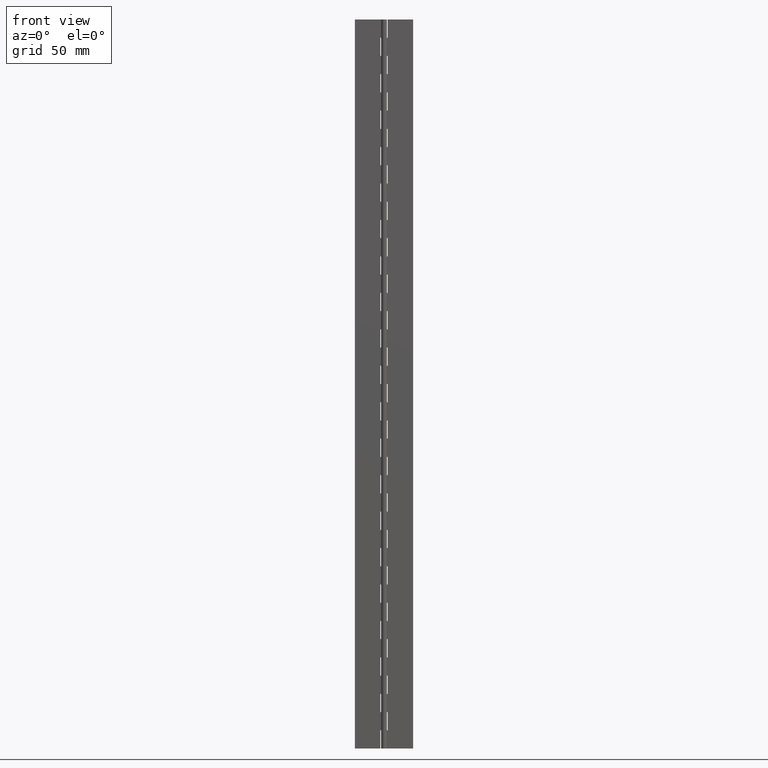
[diagram: clean part render]
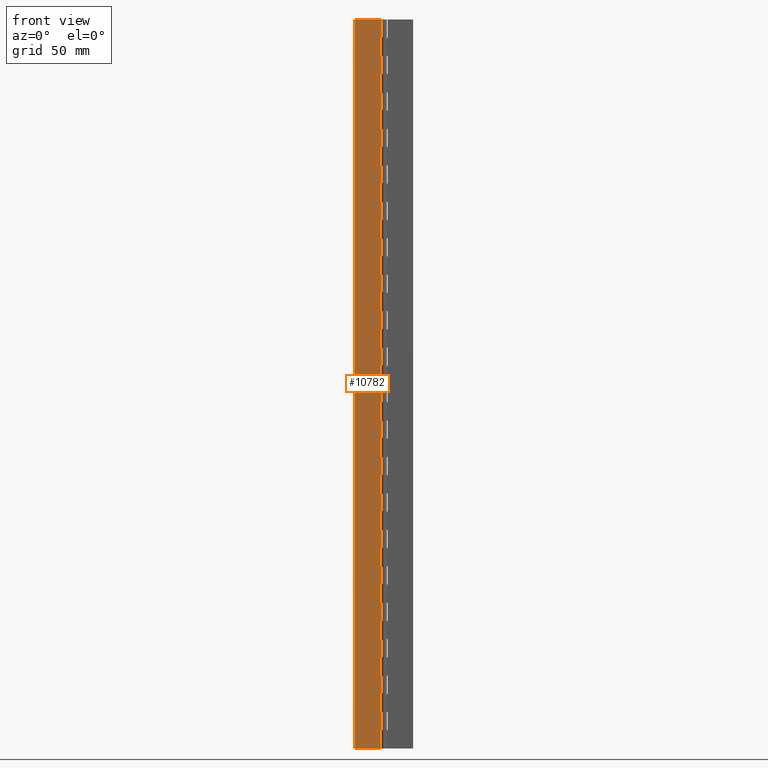
[diagram: same view with one face highlighted and labeled with its STEP entity id]
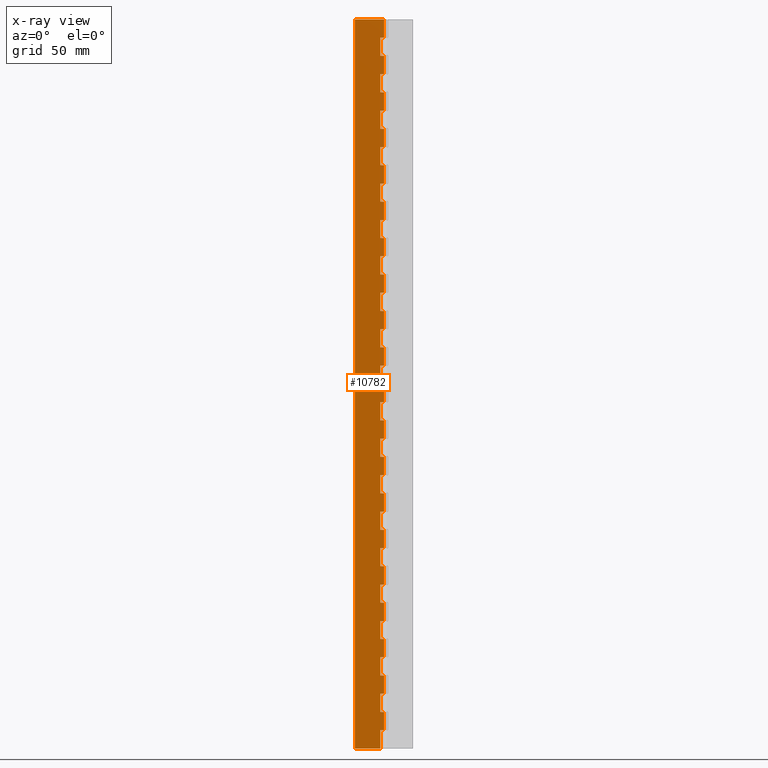
[diagram: x-ray of the same camera — body ghosted, the highlighted face saturated]
A machine part, front view. The second image highlights one B-rep face of the part: STEP entity #10782.
The next image is the same camera in x-ray: the body ghosted, the highlighted face saturated — about 0% of this face is hidden behind the body in this view.
In plain terms, the highlighted face is a freeform B-spline surface patch.
Its self-contained STEP definition (entity closure, byte-faithful):
#5566=CARTESIAN_POINT('',(-2.500000000000000,1.0,475.0));
#5567=VERTEX_POINT('',#5566);
#5582=CARTESIAN_POINT('',(-2.500000000000000,1.0,487.500000000000000));
#5583=VERTEX_POINT('',#5582);
#5589=CARTESIAN_POINT('',(-2.500000000000000,1.0,475.0));
#5590=CARTESIAN_POINT('',(-2.500000000000000,1.0,487.500000000000000));
#5591=QUASI_UNIFORM_CURVE('',1,(#5589,#5590),.UNSPECIFIED.,.F.,.U.);
#5592=EDGE_CURVE('',#5567,#5583,#5591,.T.);
#5631=CARTESIAN_POINT('',(6.123122E-017,1.0,475.0));
#5632=VERTEX_POINT('',#5631);
#5633=CARTESIAN_POINT('',(6.123122E-017,1.0,475.0));
#5634=CARTESIAN_POINT('',(-2.500000000000000,1.0,475.0));
#5635=QUASI_UNIFORM_CURVE('',1,(#5633,#5634),.UNSPECIFIED.,.F.,.U.);
#5636=EDGE_CURVE('',#5632,#5567,#5635,.T.);
#5702=CARTESIAN_POINT('',(6.123122E-017,1.0,487.500000000000000));
#5703=VERTEX_POINT('',#5702);
#5723=CARTESIAN_POINT('',(-2.500000000000000,1.0,487.500000000000000));
#5724=CARTESIAN_POINT('',(6.123122E-017,1.0,487.500000000000000));
#5725=QUASI_UNIFORM_CURVE('',1,(#5723,#5724),.UNSPECIFIED.,.F.,.U.);
#5726=EDGE_CURVE('',#5583,#5703,#5725,.T.);
#5742=CARTESIAN_POINT('',(-2.500000000000000,1.0,450.0));
#5743=VERTEX_POINT('',#5742);
#5758=CARTESIAN_POINT('',(-2.500000000000000,1.0,462.500000000000000));
#5759=VERTEX_POINT('',#5758);
#5765=CARTESIAN_POINT('',(-2.500000000000000,1.0,450.0));
#5766=CARTESIAN_POINT('',(-2.500000000000000,1.0,462.500000000000000));
#5767=QUASI_UNIFORM_CURVE('',1,(#5765,#5766),.UNSPECIFIED.,.F.,.U.);
#5768=EDGE_CURVE('',#5743,#5759,#5767,.T.);
#5807=CARTESIAN_POINT('',(6.123122E-017,1.0,450.0));
#5808=VERTEX_POINT('',#5807);
#5809=CARTESIAN_POINT('',(6.123122E-017,1.0,450.0));
#5810=CARTESIAN_POINT('',(-2.500000000000000,1.0,450.0));
#5811=QUASI_UNIFORM_CURVE('',1,(#5809,#5810),.UNSPECIFIED.,.F.,.U.);
#5812=EDGE_CURVE('',#5808,#5743,#5811,.T.);
#5878=CARTESIAN_POINT('',(6.123122E-017,1.0,462.500000000000000));
#5879=VERTEX_POINT('',#5878);
#5899=CARTESIAN_POINT('',(-2.500000000000000,1.0,462.500000000000000));
#5900=CARTESIAN_POINT('',(6.123122E-017,1.0,462.500000000000000));
#5901=QUASI_UNIFORM_CURVE('',1,(#5899,#5900),.UNSPECIFIED.,.F.,.U.);
#5902=EDGE_CURVE('',#5759,#5879,#5901,.T.);
#5918=CARTESIAN_POINT('',(-2.500000000000000,1.0,425.0));
#5919=VERTEX_POINT('',#5918);
#5934=CARTESIAN_POINT('',(-2.500000000000000,1.0,437.500000000000000));
#5935=VERTEX_POINT('',#5934);
#5941=CARTESIAN_POINT('',(-2.500000000000000,1.0,425.0));
#5942=CARTESIAN_POINT('',(-2.500000000000000,1.0,437.500000000000000));
#5943=QUASI_UNIFORM_CURVE('',1,(#5941,#5942),.UNSPECIFIED.,.F.,.U.);
#5944=EDGE_CURVE('',#5919,#5935,#5943,.T.);
#5983=CARTESIAN_POINT('',(6.123122E-017,1.0,425.0));
#5984=VERTEX_POINT('',#5983);
#5985=CARTESIAN_POINT('',(6.123122E-017,1.0,425.0));
#5986=CARTESIAN_POINT('',(-2.500000000000000,1.0,425.0));
#5987=QUASI_UNIFORM_CURVE('',1,(#5985,#5986),.UNSPECIFIED.,.F.,.U.);
#5988=EDGE_CURVE('',#5984,#5919,#5987,.T.);
#6054=CARTESIAN_POINT('',(6.123122E-017,1.0,437.500000000000000));
#6055=VERTEX_POINT('',#6054);
#6075=CARTESIAN_POINT('',(-2.500000000000000,1.0,437.500000000000000));
#6076=CARTESIAN_POINT('',(6.123122E-017,1.0,437.500000000000000));
#6077=QUASI_UNIFORM_CURVE('',1,(#6075,#6076),.UNSPECIFIED.,.F.,.U.);
#6078=EDGE_CURVE('',#5935,#6055,#6077,.T.);
#6094=CARTESIAN_POINT('',(-2.500000000000000,1.0,400.0));
#6095=VERTEX_POINT('',#6094);
#6110=CARTESIAN_POINT('',(-2.500000000000000,1.0,412.500000000000000));
#6111=VERTEX_POINT('',#6110);
#6117=CARTESIAN_POINT('',(-2.500000000000000,1.0,400.0));
#6118=CARTESIAN_POINT('',(-2.500000000000000,1.0,412.500000000000000));
#6119=QUASI_UNIFORM_CURVE('',1,(#6117,#6118),.UNSPECIFIED.,.F.,.U.);
#6120=EDGE_CURVE('',#6095,#6111,#6119,.T.);
#6159=CARTESIAN_POINT('',(6.123122E-017,1.0,400.0));
#6160=VERTEX_POINT('',#6159);
#6161=CARTESIAN_POINT('',(6.123122E-017,1.0,400.0));
#6162=CARTESIAN_POINT('',(-2.500000000000000,1.0,400.0));
#6163=QUASI_UNIFORM_CURVE('',1,(#6161,#6162),.UNSPECIFIED.,.F.,.U.);
#6164=EDGE_CURVE('',#6160,#6095,#6163,.T.);
#6230=CARTESIAN_POINT('',(6.123122E-017,1.0,412.500000000000000));
#6231=VERTEX_POINT('',#6230);
#6251=CARTESIAN_POINT('',(-2.500000000000000,1.0,412.500000000000000));
#6252=CARTESIAN_POINT('',(6.123122E-017,1.0,412.500000000000000));
#6253=QUASI_UNIFORM_CURVE('',1,(#6251,#6252),.UNSPECIFIED.,.F.,.U.);
#6254=EDGE_CURVE('',#6111,#6231,#6253,.T.);
#6270=CARTESIAN_POINT('',(-2.500000000000000,1.0,375.0));
#6271=VERTEX_POINT('',#6270);
#6286=CARTESIAN_POINT('',(-2.500000000000000,1.0,387.500000000000000));
#6287=VERTEX_POINT('',#6286);
#6293=CARTESIAN_POINT('',(-2.500000000000000,1.0,375.0));
#6294=CARTESIAN_POINT('',(-2.500000000000000,1.0,387.500000000000000));
#6295=QUASI_UNIFORM_CURVE('',1,(#6293,#6294),.UNSPECIFIED.,.F.,.U.);
#6296=EDGE_CURVE('',#6271,#6287,#6295,.T.);
#6335=CARTESIAN_POINT('',(6.123122E-017,1.0,375.0));
#6336=VERTEX_POINT('',#6335);
#6337=CARTESIAN_POINT('',(6.123122E-017,1.0,375.0));
#6338=CARTESIAN_POINT('',(-2.500000000000000,1.0,375.0));
#6339=QUASI_UNIFORM_CURVE('',1,(#6337,#6338),.UNSPECIFIED.,.F.,.U.);
#6340=EDGE_CURVE('',#6336,#6271,#6339,.T.);
#6406=CARTESIAN_POINT('',(6.123122E-017,1.0,387.500000000000000));
#6407=VERTEX_POINT('',#6406);
#6427=CARTESIAN_POINT('',(-2.500000000000000,1.0,387.500000000000000));
#6428=CARTESIAN_POINT('',(6.123122E-017,1.0,387.500000000000000));
#6429=QUASI_UNIFORM_CURVE('',1,(#6427,#6428),.UNSPECIFIED.,.F.,.U.);
#6430=EDGE_CURVE('',#6287,#6407,#6429,.T.);
#6446=CARTESIAN_POINT('',(-2.500000000000000,1.0,350.0));
#6447=VERTEX_POINT('',#6446);
#6462=CARTESIAN_POINT('',(-2.500000000000000,1.0,362.500000000000000));
#6463=VERTEX_POINT('',#6462);
#6469=CARTESIAN_POINT('',(-2.500000000000000,1.0,350.0));
#6470=CARTESIAN_POINT('',(-2.500000000000000,1.0,362.500000000000000));
#6471=QUASI_UNIFORM_CURVE('',1,(#6469,#6470),.UNSPECIFIED.,.F.,.U.);
#6472=EDGE_CURVE('',#6447,#6463,#6471,.T.);
#6511=CARTESIAN_POINT('',(6.123122E-017,1.0,350.0));
#6512=VERTEX_POINT('',#6511);
#6513=CARTESIAN_POINT('',(6.123122E-017,1.0,350.0));
#6514=CARTESIAN_POINT('',(-2.500000000000000,1.0,350.0));
#6515=QUASI_UNIFORM_CURVE('',1,(#6513,#6514),.UNSPECIFIED.,.F.,.U.);
#6516=EDGE_CURVE('',#6512,#6447,#6515,.T.);
#6582=CARTESIAN_POINT('',(6.123122E-017,1.0,362.500000000000000));
#6583=VERTEX_POINT('',#6582);
#6603=CARTESIAN_POINT('',(-2.500000000000000,1.0,362.500000000000000));
#6604=CARTESIAN_POINT('',(6.123122E-017,1.0,362.500000000000000));
#6605=QUASI_UNIFORM_CURVE('',1,(#6603,#6604),.UNSPECIFIED.,.F.,.U.);
#6606=EDGE_CURVE('',#6463,#6583,#6605,.T.);
#6622=CARTESIAN_POINT('',(-2.500000000000000,1.0,325.0));
#6623=VERTEX_POINT('',#6622);
#6638=CARTESIAN_POINT('',(-2.500000000000000,1.0,337.500000000000000));
#6639=VERTEX_POINT('',#6638);
#6645=CARTESIAN_POINT('',(-2.500000000000000,1.0,325.0));
#6646=CARTESIAN_POINT('',(-2.500000000000000,1.0,337.500000000000000));
#6647=QUASI_UNIFORM_CURVE('',1,(#6645,#6646),.UNSPECIFIED.,.F.,.U.);
#6648=EDGE_CURVE('',#6623,#6639,#6647,.T.);
#6687=CARTESIAN_POINT('',(6.123122E-017,1.0,325.0));
#6688=VERTEX_POINT('',#6687);
#6689=CARTESIAN_POINT('',(6.123122E-017,1.0,325.0));
#6690=CARTESIAN_POINT('',(-2.500000000000000,1.0,325.0));
#6691=QUASI_UNIFORM_CURVE('',1,(#6689,#6690),.UNSPECIFIED.,.F.,.U.);
#6692=EDGE_CURVE('',#6688,#6623,#6691,.T.);
#6758=CARTESIAN_POINT('',(6.123122E-017,1.0,337.500000000000000));
#6759=VERTEX_POINT('',#6758);
#6779=CARTESIAN_POINT('',(-2.500000000000000,1.0,337.500000000000000));
#6780=CARTESIAN_POINT('',(6.123122E-017,1.0,337.500000000000000));
#6781=QUASI_UNIFORM_CURVE('',1,(#6779,#6780),.UNSPECIFIED.,.F.,.U.);
#6782=EDGE_CURVE('',#6639,#6759,#6781,.T.);
#6798=CARTESIAN_POINT('',(-2.500000000000000,1.0,300.0));
#6799=VERTEX_POINT('',#6798);
#6814=CARTESIAN_POINT('',(-2.500000000000000,1.0,312.500000000000000));
#6815=VERTEX_POINT('',#6814);
#6821=CARTESIAN_POINT('',(-2.500000000000000,1.0,300.0));
#6822=CARTESIAN_POINT('',(-2.500000000000000,1.0,312.500000000000000));
#6823=QUASI_UNIFORM_CURVE('',1,(#6821,#6822),.UNSPECIFIED.,.F.,.U.);
#6824=EDGE_CURVE('',#6799,#6815,#6823,.T.);
#6863=CARTESIAN_POINT('',(6.123122E-017,1.0,300.0));
#6864=VERTEX_POINT('',#6863);
#6865=CARTESIAN_POINT('',(6.123122E-017,1.0,300.0));
#6866=CARTESIAN_POINT('',(-2.500000000000000,1.0,300.0));
#6867=QUASI_UNIFORM_CURVE('',1,(#6865,#6866),.UNSPECIFIED.,.F.,.U.);
#6868=EDGE_CURVE('',#6864,#6799,#6867,.T.);
#6934=CARTESIAN_POINT('',(6.123122E-017,1.0,312.500000000000000));
#6935=VERTEX_POINT('',#6934);
#6955=CARTESIAN_POINT('',(-2.500000000000000,1.0,312.500000000000000));
#6956=CARTESIAN_POINT('',(6.123122E-017,1.0,312.500000000000000));
#6957=QUASI_UNIFORM_CURVE('',1,(#6955,#6956),.UNSPECIFIED.,.F.,.U.);
#6958=EDGE_CURVE('',#6815,#6935,#6957,.T.);
#6974=CARTESIAN_POINT('',(-2.500000000000000,1.0,275.0));
#6975=VERTEX_POINT('',#6974);
#6990=CARTESIAN_POINT('',(-2.500000000000000,1.0,287.500000000000000));
#6991=VERTEX_POINT('',#6990);
#6997=CARTESIAN_POINT('',(-2.500000000000000,1.0,275.0));
#6998=CARTESIAN_POINT('',(-2.500000000000000,1.0,287.500000000000000));
#6999=QUASI_UNIFORM_CURVE('',1,(#6997,#6998),.UNSPECIFIED.,.F.,.U.);
#7000=EDGE_CURVE('',#6975,#6991,#6999,.T.);
#7039=CARTESIAN_POINT('',(6.123122E-017,1.0,275.0));
#7040=VERTEX_POINT('',#7039);
#7041=CARTESIAN_POINT('',(6.123122E-017,1.0,275.0));
#7042=CARTESIAN_POINT('',(-2.500000000000000,1.0,275.0));
#7043=QUASI_UNIFORM_CURVE('',1,(#7041,#7042),.UNSPECIFIED.,.F.,.U.);
#7044=EDGE_CURVE('',#7040,#6975,#7043,.T.);
#7110=CARTESIAN_POINT('',(6.123122E-017,1.0,287.500000000000000));
#7111=VERTEX_POINT('',#7110);
#7131=CARTESIAN_POINT('',(-2.500000000000000,1.0,287.500000000000000));
#7132=CARTESIAN_POINT('',(6.123122E-017,1.0,287.500000000000000));
#7133=QUASI_UNIFORM_CURVE('',1,(#7131,#7132),.UNSPECIFIED.,.F.,.U.);
#7134=EDGE_CURVE('',#6991,#7111,#7133,.T.);
#7150=CARTESIAN_POINT('',(-2.500000000000000,1.0,250.0));
#7151=VERTEX_POINT('',#7150);
#7166=CARTESIAN_POINT('',(-2.500000000000000,1.0,262.500000000000000));
#7167=VERTEX_POINT('',#7166);
#7173=CARTESIAN_POINT('',(-2.500000000000000,1.0,250.0));
#7174=CARTESIAN_POINT('',(-2.500000000000000,1.0,262.500000000000000));
#7175=QUASI_UNIFORM_CURVE('',1,(#7173,#7174),.UNSPECIFIED.,.F.,.U.);
#7176=EDGE_CURVE('',#7151,#7167,#7175,.T.);
#7215=CARTESIAN_POINT('',(6.123122E-017,1.0,250.0));
#7216=VERTEX_POINT('',#7215);
#7217=CARTESIAN_POINT('',(6.123122E-017,1.0,250.0));
#7218=CARTESIAN_POINT('',(-2.500000000000000,1.0,250.0));
#7219=QUASI_UNIFORM_CURVE('',1,(#7217,#7218),.UNSPECIFIED.,.F.,.U.);
#7220=EDGE_CURVE('',#7216,#7151,#7219,.T.);
#7286=CARTESIAN_POINT('',(6.123122E-017,1.0,262.500000000000000));
#7287=VERTEX_POINT('',#7286);
#7307=CARTESIAN_POINT('',(-2.500000000000000,1.0,262.500000000000000));
#7308=CARTESIAN_POINT('',(6.123122E-017,1.0,262.500000000000000));
#7309=QUASI_UNIFORM_CURVE('',1,(#7307,#7308),.UNSPECIFIED.,.F.,.U.);
#7310=EDGE_CURVE('',#7167,#7287,#7309,.T.);
#7326=CARTESIAN_POINT('',(-2.500000000000000,1.0,225.0));
#7327=VERTEX_POINT('',#7326);
#7342=CARTESIAN_POINT('',(-2.500000000000000,1.0,237.500000000000000));
#7343=VERTEX_POINT('',#7342);
#7349=CARTESIAN_POINT('',(-2.500000000000000,1.0,225.0));
#7350=CARTESIAN_POINT('',(-2.500000000000000,1.0,237.500000000000000));
#7351=QUASI_UNIFORM_CURVE('',1,(#7349,#7350),.UNSPECIFIED.,.F.,.U.);
#7352=EDGE_CURVE('',#7327,#7343,#7351,.T.);
#7391=CARTESIAN_POINT('',(6.123122E-017,1.0,225.0));
#7392=VERTEX_POINT('',#7391);
#7393=CARTESIAN_POINT('',(6.123122E-017,1.0,225.0));
#7394=CARTESIAN_POINT('',(-2.500000000000000,1.0,225.0));
#7395=QUASI_UNIFORM_CURVE('',1,(#7393,#7394),.UNSPECIFIED.,.F.,.U.);
#7396=EDGE_CURVE('',#7392,#7327,#7395,.T.);
#7462=CARTESIAN_POINT('',(6.123122E-017,1.0,237.500000000000000));
#7463=VERTEX_POINT('',#7462);
#7483=CARTESIAN_POINT('',(-2.500000000000000,1.0,237.500000000000000));
#7484=CARTESIAN_POINT('',(6.123122E-017,1.0,237.500000000000000));
#7485=QUASI_UNIFORM_CURVE('',1,(#7483,#7484),.UNSPECIFIED.,.F.,.U.);
#7486=EDGE_CURVE('',#7343,#7463,#7485,.T.);
#7502=CARTESIAN_POINT('',(-2.500000000000000,1.0,200.0));
#7503=VERTEX_POINT('',#7502);
#7518=CARTESIAN_POINT('',(-2.500000000000000,1.0,212.500000000000000));
#7519=VERTEX_POINT('',#7518);
#7525=CARTESIAN_POINT('',(-2.500000000000000,1.0,200.0));
#7526=CARTESIAN_POINT('',(-2.500000000000000,1.0,212.500000000000000));
#7527=QUASI_UNIFORM_CURVE('',1,(#7525,#7526),.UNSPECIFIED.,.F.,.U.);
#7528=EDGE_CURVE('',#7503,#7519,#7527,.T.);
#7567=CARTESIAN_POINT('',(6.123122E-017,1.0,200.0));
#7568=VERTEX_POINT('',#7567);
#7569=CARTESIAN_POINT('',(6.123122E-017,1.0,200.0));
#7570=CARTESIAN_POINT('',(-2.500000000000000,1.0,200.0));
#7571=QUASI_UNIFORM_CURVE('',1,(#7569,#7570),.UNSPECIFIED.,.F.,.U.);
#7572=EDGE_CURVE('',#7568,#7503,#7571,.T.);
#7638=CARTESIAN_POINT('',(6.123122E-017,1.0,212.500000000000000));
#7639=VERTEX_POINT('',#7638);
#7659=CARTESIAN_POINT('',(-2.500000000000000,1.0,212.500000000000000));
#7660=CARTESIAN_POINT('',(6.123122E-017,1.0,212.500000000000000));
#7661=QUASI_UNIFORM_CURVE('',1,(#7659,#7660),.UNSPECIFIED.,.F.,.U.);
#7662=EDGE_CURVE('',#7519,#7639,#7661,.T.);
#7678=CARTESIAN_POINT('',(-2.500000000000000,1.0,175.0));
#7679=VERTEX_POINT('',#7678);
#7694=CARTESIAN_POINT('',(-2.500000000000000,1.0,187.500000000000000));
#7695=VERTEX_POINT('',#7694);
#7701=CARTESIAN_POINT('',(-2.500000000000000,1.0,175.0));
#7702=CARTESIAN_POINT('',(-2.500000000000000,1.0,187.500000000000000));
#7703=QUASI_UNIFORM_CURVE('',1,(#7701,#7702),.UNSPECIFIED.,.F.,.U.);
#7704=EDGE_CURVE('',#7679,#7695,#7703,.T.);
#7743=CARTESIAN_POINT('',(6.123122E-017,1.0,175.0));
#7744=VERTEX_POINT('',#7743);
#7745=CARTESIAN_POINT('',(6.123122E-017,1.0,175.0));
#7746=CARTESIAN_POINT('',(-2.500000000000000,1.0,175.0));
#7747=QUASI_UNIFORM_CURVE('',1,(#7745,#7746),.UNSPECIFIED.,.F.,.U.);
#7748=EDGE_CURVE('',#7744,#7679,#7747,.T.);
#7814=CARTESIAN_POINT('',(6.123122E-017,1.0,187.500000000000000));
#7815=VERTEX_POINT('',#7814);
#7835=CARTESIAN_POINT('',(-2.500000000000000,1.0,187.500000000000000));
#7836=CARTESIAN_POINT('',(6.123122E-017,1.0,187.500000000000000));
#7837=QUASI_UNIFORM_CURVE('',1,(#7835,#7836),.UNSPECIFIED.,.F.,.U.);
#7838=EDGE_CURVE('',#7695,#7815,#7837,.T.);
#7854=CARTESIAN_POINT('',(-2.500000000000000,1.0,150.0));
#7855=VERTEX_POINT('',#7854);
#7870=CARTESIAN_POINT('',(-2.500000000000000,1.0,162.500000000000000));
#7871=VERTEX_POINT('',#7870);
#7877=CARTESIAN_POINT('',(-2.500000000000000,1.0,150.0));
#7878=CARTESIAN_POINT('',(-2.500000000000000,1.0,162.500000000000000));
#7879=QUASI_UNIFORM_CURVE('',1,(#7877,#7878),.UNSPECIFIED.,.F.,.U.);
#7880=EDGE_CURVE('',#7855,#7871,#7879,.T.);
#7919=CARTESIAN_POINT('',(6.123122E-017,1.0,150.0));
#7920=VERTEX_POINT('',#7919);
#7921=CARTESIAN_POINT('',(6.123122E-017,1.0,150.0));
#7922=CARTESIAN_POINT('',(-2.500000000000000,1.0,150.0));
#7923=QUASI_UNIFORM_CURVE('',1,(#7921,#7922),.UNSPECIFIED.,.F.,.U.);
#7924=EDGE_CURVE('',#7920,#7855,#7923,.T.);
#7990=CARTESIAN_POINT('',(6.123122E-017,1.0,162.500000000000000));
#7991=VERTEX_POINT('',#7990);
#8011=CARTESIAN_POINT('',(-2.500000000000000,1.0,162.500000000000000));
#8012=CARTESIAN_POINT('',(6.123122E-017,1.0,162.500000000000000));
#8013=QUASI_UNIFORM_CURVE('',1,(#8011,#8012),.UNSPECIFIED.,.F.,.U.);
#8014=EDGE_CURVE('',#7871,#7991,#8013,.T.);
#8030=CARTESIAN_POINT('',(-2.500000000000000,1.0,125.0));
#8031=VERTEX_POINT('',#8030);
#8046=CARTESIAN_POINT('',(-2.500000000000000,1.0,137.500000000000000));
#8047=VERTEX_POINT('',#8046);
#8053=CARTESIAN_POINT('',(-2.500000000000000,1.0,125.0));
#8054=CARTESIAN_POINT('',(-2.500000000000000,1.0,137.500000000000000));
#8055=QUASI_UNIFORM_CURVE('',1,(#8053,#8054),.UNSPECIFIED.,.F.,.U.);
#8056=EDGE_CURVE('',#8031,#8047,#8055,.T.);
#8095=CARTESIAN_POINT('',(6.123122E-017,1.0,125.0));
#8096=VERTEX_POINT('',#8095);
#8097=CARTESIAN_POINT('',(6.123122E-017,1.0,125.0));
#8098=CARTESIAN_POINT('',(-2.500000000000000,1.0,125.0));
#8099=QUASI_UNIFORM_CURVE('',1,(#8097,#8098),.UNSPECIFIED.,.F.,.U.);
#8100=EDGE_CURVE('',#8096,#8031,#8099,.T.);
#8166=CARTESIAN_POINT('',(6.123122E-017,1.0,137.500000000000000));
#8167=VERTEX_POINT('',#8166);
#8187=CARTESIAN_POINT('',(-2.500000000000000,1.0,137.500000000000000));
#8188=CARTESIAN_POINT('',(6.123122E-017,1.0,137.500000000000000));
#8189=QUASI_UNIFORM_CURVE('',1,(#8187,#8188),.UNSPECIFIED.,.F.,.U.);
#8190=EDGE_CURVE('',#8047,#8167,#8189,.T.);
#8206=CARTESIAN_POINT('',(-2.500000000000000,1.0,100.0));
#8207=VERTEX_POINT('',#8206);
#8222=CARTESIAN_POINT('',(-2.500000000000000,1.0,112.500000000000000));
#8223=VERTEX_POINT('',#8222);
#8229=CARTESIAN_POINT('',(-2.500000000000000,1.0,100.0));
#8230=CARTESIAN_POINT('',(-2.500000000000000,1.0,112.500000000000000));
#8231=QUASI_UNIFORM_CURVE('',1,(#8229,#8230),.UNSPECIFIED.,.F.,.U.);
#8232=EDGE_CURVE('',#8207,#8223,#8231,.T.);
#8271=CARTESIAN_POINT('',(6.123122E-017,1.0,100.0));
#8272=VERTEX_POINT('',#8271);
#8273=CARTESIAN_POINT('',(6.123122E-017,1.0,100.0));
#8274=CARTESIAN_POINT('',(-2.500000000000000,1.0,100.0));
#8275=QUASI_UNIFORM_CURVE('',1,(#8273,#8274),.UNSPECIFIED.,.F.,.U.);
#8276=EDGE_CURVE('',#8272,#8207,#8275,.T.);
#8342=CARTESIAN_POINT('',(6.123122E-017,1.0,112.500000000000000));
#8343=VERTEX_POINT('',#8342);
#8363=CARTESIAN_POINT('',(-2.500000000000000,1.0,112.500000000000000));
#8364=CARTESIAN_POINT('',(6.123122E-017,1.0,112.500000000000000));
#8365=QUASI_UNIFORM_CURVE('',1,(#8363,#8364),.UNSPECIFIED.,.F.,.U.);
#8366=EDGE_CURVE('',#8223,#8343,#8365,.T.);
#8382=CARTESIAN_POINT('',(-2.500000000000000,1.0,75.0));
#8383=VERTEX_POINT('',#8382);
#8398=CARTESIAN_POINT('',(-2.500000000000000,1.0,87.500000000000000));
#8399=VERTEX_POINT('',#8398);
#8405=CARTESIAN_POINT('',(-2.500000000000000,1.0,75.0));
#8406=CARTESIAN_POINT('',(-2.500000000000000,1.0,87.500000000000000));
#8407=QUASI_UNIFORM_CURVE('',1,(#8405,#8406),.UNSPECIFIED.,.F.,.U.);
#8408=EDGE_CURVE('',#8383,#8399,#8407,.T.);
#8447=CARTESIAN_POINT('',(6.123122E-017,1.0,75.0));
#8448=VERTEX_POINT('',#8447);
#8449=CARTESIAN_POINT('',(6.123122E-017,1.0,75.0));
#8450=CARTESIAN_POINT('',(-2.500000000000000,1.0,75.0));
#8451=QUASI_UNIFORM_CURVE('',1,(#8449,#8450),.UNSPECIFIED.,.F.,.U.);
#8452=EDGE_CURVE('',#8448,#8383,#8451,.T.);
#8518=CARTESIAN_POINT('',(6.123122E-017,1.0,87.500000000000000));
#8519=VERTEX_POINT('',#8518);
#8539=CARTESIAN_POINT('',(-2.500000000000000,1.0,87.500000000000000));
#8540=CARTESIAN_POINT('',(6.123122E-017,1.0,87.500000000000000));
#8541=QUASI_UNIFORM_CURVE('',1,(#8539,#8540),.UNSPECIFIED.,.F.,.U.);
#8542=EDGE_CURVE('',#8399,#8519,#8541,.T.);
#8558=CARTESIAN_POINT('',(-2.500000000000000,1.0,50.0));
#8559=VERTEX_POINT('',#8558);
#8574=CARTESIAN_POINT('',(-2.500000000000000,1.0,62.500000000000000));
#8575=VERTEX_POINT('',#8574);
#8581=CARTESIAN_POINT('',(-2.500000000000000,1.0,50.0));
#8582=CARTESIAN_POINT('',(-2.500000000000000,1.0,62.500000000000000));
#8583=QUASI_UNIFORM_CURVE('',1,(#8581,#8582),.UNSPECIFIED.,.F.,.U.);
#8584=EDGE_CURVE('',#8559,#8575,#8583,.T.);
#8623=CARTESIAN_POINT('',(6.123122E-017,1.0,50.0));
#8624=VERTEX_POINT('',#8623);
#8625=CARTESIAN_POINT('',(6.123122E-017,1.0,50.0));
#8626=CARTESIAN_POINT('',(-2.500000000000000,1.0,50.0));
#8627=QUASI_UNIFORM_CURVE('',1,(#8625,#8626),.UNSPECIFIED.,.F.,.U.);
#8628=EDGE_CURVE('',#8624,#8559,#8627,.T.);
#8694=CARTESIAN_POINT('',(6.123122E-017,1.0,62.500000000000000));
#8695=VERTEX_POINT('',#8694);
#8715=CARTESIAN_POINT('',(-2.500000000000000,1.0,62.500000000000000));
#8716=CARTESIAN_POINT('',(6.123122E-017,1.0,62.500000000000000));
#8717=QUASI_UNIFORM_CURVE('',1,(#8715,#8716),.UNSPECIFIED.,.F.,.U.);
#8718=EDGE_CURVE('',#8575,#8695,#8717,.T.);
#8734=CARTESIAN_POINT('',(-2.500000000000000,1.0,25.0));
#8735=VERTEX_POINT('',#8734);
#8750=CARTESIAN_POINT('',(-2.500000000000000,1.0,37.500000000000000));
#8751=VERTEX_POINT('',#8750);
#8757=CARTESIAN_POINT('',(-2.500000000000000,1.0,25.0));
#8758=CARTESIAN_POINT('',(-2.500000000000000,1.0,37.500000000000000));
#8759=QUASI_UNIFORM_CURVE('',1,(#8757,#8758),.UNSPECIFIED.,.F.,.U.);
#8760=EDGE_CURVE('',#8735,#8751,#8759,.T.);
#8799=CARTESIAN_POINT('',(6.123122E-017,1.0,25.0));
#8800=VERTEX_POINT('',#8799);
#8801=CARTESIAN_POINT('',(6.123122E-017,1.0,25.0));
#8802=CARTESIAN_POINT('',(-2.500000000000000,1.0,25.0));
#8803=QUASI_UNIFORM_CURVE('',1,(#8801,#8802),.UNSPECIFIED.,.F.,.U.);
#8804=EDGE_CURVE('',#8800,#8735,#8803,.T.);
#8870=CARTESIAN_POINT('',(6.123122E-017,1.0,37.500000000000000));
#8871=VERTEX_POINT('',#8870);
#8891=CARTESIAN_POINT('',(-2.500000000000000,1.0,37.500000000000000));
#8892=CARTESIAN_POINT('',(6.123122E-017,1.0,37.500000000000000));
#8893=QUASI_UNIFORM_CURVE('',1,(#8891,#8892),.UNSPECIFIED.,.F.,.U.);
#8894=EDGE_CURVE('',#8751,#8871,#8893,.T.);
#8910=CARTESIAN_POINT('',(-2.500000000000000,1.0,0.0));
#8911=VERTEX_POINT('',#8910);
#8926=CARTESIAN_POINT('',(-2.500000000000000,1.0,12.500000000000000));
#8927=VERTEX_POINT('',#8926);
#8933=CARTESIAN_POINT('',(-2.500000000000000,1.0,0.0));
#8934=CARTESIAN_POINT('',(-2.500000000000000,1.0,12.500000000000000));
#8935=QUASI_UNIFORM_CURVE('',1,(#8933,#8934),.UNSPECIFIED.,.F.,.U.);
#8936=EDGE_CURVE('',#8911,#8927,#8935,.T.);
#8976=CARTESIAN_POINT('',(6.123122E-017,1.0,12.500000000000000));
#8977=VERTEX_POINT('',#8976);
#8997=CARTESIAN_POINT('',(-2.500000000000000,1.0,12.500000000000000));
#8998=CARTESIAN_POINT('',(6.123122E-017,1.0,12.500000000000000));
#8999=QUASI_UNIFORM_CURVE('',1,(#8997,#8998),.UNSPECIFIED.,.F.,.U.);
#9000=EDGE_CURVE('',#8927,#8977,#8999,.T.);
#9025=CARTESIAN_POINT('',(-20.0,1.0,500.0));
#9026=VERTEX_POINT('',#9025);
#9032=CARTESIAN_POINT('',(6.123032E-017,1.0,500.0));
#9033=VERTEX_POINT('',#9032);
#9034=CARTESIAN_POINT('',(6.123032E-017,1.0,500.0));
#9035=CARTESIAN_POINT('',(-20.0,1.0,500.0));
#9036=QUASI_UNIFORM_CURVE('',1,(#9034,#9035),.UNSPECIFIED.,.F.,.U.);
#9037=EDGE_CURVE('',#9033,#9026,#9036,.T.);
#9094=CARTESIAN_POINT('',(-20.0,1.0,0.0));
#9095=VERTEX_POINT('',#9094);
#9103=CARTESIAN_POINT('',(-20.0,1.0,500.0));
#9104=CARTESIAN_POINT('',(-20.0,1.0,0.0));
#9105=QUASI_UNIFORM_CURVE('',1,(#9103,#9104),.UNSPECIFIED.,.F.,.U.);
#9106=EDGE_CURVE('',#9026,#9095,#9105,.T.);
#9123=CARTESIAN_POINT('',(-2.500000000000000,1.0,0.0));
#9124=CARTESIAN_POINT('',(-20.0,1.0,0.0));
#9125=QUASI_UNIFORM_CURVE('',1,(#9123,#9124),.UNSPECIFIED.,.F.,.U.);
#9126=EDGE_CURVE('',#8911,#9095,#9125,.T.);
#9165=CARTESIAN_POINT('',(6.123122E-017,1.0,25.0));
#9166=CARTESIAN_POINT('',(6.123122E-017,1.0,12.500000000000000));
#9167=QUASI_UNIFORM_CURVE('',1,(#9165,#9166),.UNSPECIFIED.,.F.,.U.);
#9168=EDGE_CURVE('',#8800,#8977,#9167,.T.);
#9251=CARTESIAN_POINT('',(6.123122E-017,1.0,50.0));
#9252=CARTESIAN_POINT('',(6.123122E-017,1.0,37.500000000000000));
#9253=QUASI_UNIFORM_CURVE('',1,(#9251,#9252),.UNSPECIFIED.,.F.,.U.);
#9254=EDGE_CURVE('',#8624,#8871,#9253,.T.);
#9337=CARTESIAN_POINT('',(6.123122E-017,1.0,75.0));
#9338=CARTESIAN_POINT('',(6.123122E-017,1.0,62.500000000000000));
#9339=QUASI_UNIFORM_CURVE('',1,(#9337,#9338),.UNSPECIFIED.,.F.,.U.);
#9340=EDGE_CURVE('',#8448,#8695,#9339,.T.);
#9423=CARTESIAN_POINT('',(6.123122E-017,1.0,100.0));
#9424=CARTESIAN_POINT('',(6.123122E-017,1.0,87.500000000000000));
#9425=QUASI_UNIFORM_CURVE('',1,(#9423,#9424),.UNSPECIFIED.,.F.,.U.);
#9426=EDGE_CURVE('',#8272,#8519,#9425,.T.);
#9509=CARTESIAN_POINT('',(6.123122E-017,1.0,125.0));
#9510=CARTESIAN_POINT('',(6.123122E-017,1.0,112.500000000000000));
#9511=QUASI_UNIFORM_CURVE('',1,(#9509,#9510),.UNSPECIFIED.,.F.,.U.);
#9512=EDGE_CURVE('',#8096,#8343,#9511,.T.);
#9595=CARTESIAN_POINT('',(6.123122E-017,1.0,150.0));
#9596=CARTESIAN_POINT('',(6.123122E-017,1.0,137.500000000000000));
#9597=QUASI_UNIFORM_CURVE('',1,(#9595,#9596),.UNSPECIFIED.,.F.,.U.);
#9598=EDGE_CURVE('',#7920,#8167,#9597,.T.);
#9681=CARTESIAN_POINT('',(6.123122E-017,1.0,175.0));
#9682=CARTESIAN_POINT('',(6.123122E-017,1.0,162.500000000000000));
#9683=QUASI_UNIFORM_CURVE('',1,(#9681,#9682),.UNSPECIFIED.,.F.,.U.);
#9684=EDGE_CURVE('',#7744,#7991,#9683,.T.);
#9767=CARTESIAN_POINT('',(6.123122E-017,1.0,200.0));
#9768=CARTESIAN_POINT('',(6.123122E-017,1.0,187.500000000000000));
#9769=QUASI_UNIFORM_CURVE('',1,(#9767,#9768),.UNSPECIFIED.,.F.,.U.);
#9770=EDGE_CURVE('',#7568,#7815,#9769,.T.);
#9853=CARTESIAN_POINT('',(6.123122E-017,1.0,225.0));
#9854=CARTESIAN_POINT('',(6.123122E-017,1.0,212.500000000000000));
#9855=QUASI_UNIFORM_CURVE('',1,(#9853,#9854),.UNSPECIFIED.,.F.,.U.);
#9856=EDGE_CURVE('',#7392,#7639,#9855,.T.);
#9939=CARTESIAN_POINT('',(6.123122E-017,1.0,250.0));
#9940=CARTESIAN_POINT('',(6.123122E-017,1.0,237.500000000000000));
#9941=QUASI_UNIFORM_CURVE('',1,(#9939,#9940),.UNSPECIFIED.,.F.,.U.);
#9942=EDGE_CURVE('',#7216,#7463,#9941,.T.);
#10025=CARTESIAN_POINT('',(6.123122E-017,1.0,275.0));
#10026=CARTESIAN_POINT('',(6.123122E-017,1.0,262.500000000000000));
#10027=QUASI_UNIFORM_CURVE('',1,(#10025,#10026),.UNSPECIFIED.,.F.,.U.);
#10028=EDGE_CURVE('',#7040,#7287,#10027,.T.);
#10111=CARTESIAN_POINT('',(6.123122E-017,1.0,300.0));
#10112=CARTESIAN_POINT('',(6.123122E-017,1.0,287.500000000000000));
#10113=QUASI_UNIFORM_CURVE('',1,(#10111,#10112),.UNSPECIFIED.,.F.,.U.);
#10114=EDGE_CURVE('',#6864,#7111,#10113,.T.);
#10197=CARTESIAN_POINT('',(6.123122E-017,1.0,325.0));
#10198=CARTESIAN_POINT('',(6.123122E-017,1.0,312.500000000000000));
#10199=QUASI_UNIFORM_CURVE('',1,(#10197,#10198),.UNSPECIFIED.,.F.,.U.);
#10200=EDGE_CURVE('',#6688,#6935,#10199,.T.);
#10283=CARTESIAN_POINT('',(6.123122E-017,1.0,350.0));
#10284=CARTESIAN_POINT('',(6.123122E-017,1.0,337.500000000000000));
#10285=QUASI_UNIFORM_CURVE('',1,(#10283,#10284),.UNSPECIFIED.,.F.,.U.);
#10286=EDGE_CURVE('',#6512,#6759,#10285,.T.);
#10369=CARTESIAN_POINT('',(6.123122E-017,1.0,375.0));
#10370=CARTESIAN_POINT('',(6.123122E-017,1.0,362.500000000000000));
#10371=QUASI_UNIFORM_CURVE('',1,(#10369,#10370),.UNSPECIFIED.,.F.,.U.);
#10372=EDGE_CURVE('',#6336,#6583,#10371,.T.);
#10455=CARTESIAN_POINT('',(6.123122E-017,1.0,400.0));
#10456=CARTESIAN_POINT('',(6.123122E-017,1.0,387.500000000000000));
#10457=QUASI_UNIFORM_CURVE('',1,(#10455,#10456),.UNSPECIFIED.,.F.,.U.);
#10458=EDGE_CURVE('',#6160,#6407,#10457,.T.);
#10541=CARTESIAN_POINT('',(6.123122E-017,1.0,425.0));
#10542=CARTESIAN_POINT('',(6.123122E-017,1.0,412.500000000000000));
#10543=QUASI_UNIFORM_CURVE('',1,(#10541,#10542),.UNSPECIFIED.,.F.,.U.);
#10544=EDGE_CURVE('',#5984,#6231,#10543,.T.);
#10627=CARTESIAN_POINT('',(6.123122E-017,1.0,450.0));
#10628=CARTESIAN_POINT('',(6.123122E-017,1.0,437.500000000000000));
#10629=QUASI_UNIFORM_CURVE('',1,(#10627,#10628),.UNSPECIFIED.,.F.,.U.);
#10630=EDGE_CURVE('',#5808,#6055,#10629,.T.);
#10685=CARTESIAN_POINT('',(-20.998999961236120,1.0,524.974999030902950));
#10686=CARTESIAN_POINT('',(-20.998999961236120,1.0,-24.975012441948049));
#10687=CARTESIAN_POINT('',(0.999000497677922,1.0,524.974999030902950));
#10688=CARTESIAN_POINT('',(0.999000497677922,1.0,-24.975012441948049));
#10689=B_SPLINE_SURFACE_WITH_KNOTS('',1,1,((#10685,#10687),(#10686,#10688)),.UNSPECIFIED.,.F.,.F.,.U.,(2,2),(2,2),(0.0,549.950011472850970),(0.0,21.998000458914039),.UNSPECIFIED.);
#10690=ORIENTED_EDGE('',*,*,#5592,.T.);
#10691=ORIENTED_EDGE('',*,*,#5726,.T.);
#10692=CARTESIAN_POINT('',(6.123032E-017,1.0,500.0));
#10693=CARTESIAN_POINT('',(6.123122E-017,1.0,487.500000000000000));
#10694=QUASI_UNIFORM_CURVE('',1,(#10692,#10693),.UNSPECIFIED.,.F.,.U.);
#10695=EDGE_CURVE('',#9033,#5703,#10694,.T.);
#10696=ORIENTED_EDGE('',*,*,#10695,.F.);
#10697=ORIENTED_EDGE('',*,*,#9037,.T.);
#10698=ORIENTED_EDGE('',*,*,#9106,.T.);
#10699=ORIENTED_EDGE('',*,*,#9126,.F.);
#10700=ORIENTED_EDGE('',*,*,#8936,.T.);
#10701=ORIENTED_EDGE('',*,*,#9000,.T.);
#10702=ORIENTED_EDGE('',*,*,#9168,.F.);
#10703=ORIENTED_EDGE('',*,*,#8804,.T.);
#10704=ORIENTED_EDGE('',*,*,#8760,.T.);
#10705=ORIENTED_EDGE('',*,*,#8894,.T.);
#10706=ORIENTED_EDGE('',*,*,#9254,.F.);
#10707=ORIENTED_EDGE('',*,*,#8628,.T.);
#10708=ORIENTED_EDGE('',*,*,#8584,.T.);
#10709=ORIENTED_EDGE('',*,*,#8718,.T.);
#10710=ORIENTED_EDGE('',*,*,#9340,.F.);
#10711=ORIENTED_EDGE('',*,*,#8452,.T.);
#10712=ORIENTED_EDGE('',*,*,#8408,.T.);
#10713=ORIENTED_EDGE('',*,*,#8542,.T.);
#10714=ORIENTED_EDGE('',*,*,#9426,.F.);
#10715=ORIENTED_EDGE('',*,*,#8276,.T.);
#10716=ORIENTED_EDGE('',*,*,#8232,.T.);
#10717=ORIENTED_EDGE('',*,*,#8366,.T.);
#10718=ORIENTED_EDGE('',*,*,#9512,.F.);
#10719=ORIENTED_EDGE('',*,*,#8100,.T.);
#10720=ORIENTED_EDGE('',*,*,#8056,.T.);
#10721=ORIENTED_EDGE('',*,*,#8190,.T.);
#10722=ORIENTED_EDGE('',*,*,#9598,.F.);
#10723=ORIENTED_EDGE('',*,*,#7924,.T.);
#10724=ORIENTED_EDGE('',*,*,#7880,.T.);
#10725=ORIENTED_EDGE('',*,*,#8014,.T.);
#10726=ORIENTED_EDGE('',*,*,#9684,.F.);
#10727=ORIENTED_EDGE('',*,*,#7748,.T.);
#10728=ORIENTED_EDGE('',*,*,#7704,.T.);
#10729=ORIENTED_EDGE('',*,*,#7838,.T.);
#10730=ORIENTED_EDGE('',*,*,#9770,.F.);
#10731=ORIENTED_EDGE('',*,*,#7572,.T.);
#10732=ORIENTED_EDGE('',*,*,#7528,.T.);
#10733=ORIENTED_EDGE('',*,*,#7662,.T.);
#10734=ORIENTED_EDGE('',*,*,#9856,.F.);
#10735=ORIENTED_EDGE('',*,*,#7396,.T.);
#10736=ORIENTED_EDGE('',*,*,#7352,.T.);
#10737=ORIENTED_EDGE('',*,*,#7486,.T.);
#10738=ORIENTED_EDGE('',*,*,#9942,.F.);
#10739=ORIENTED_EDGE('',*,*,#7220,.T.);
#10740=ORIENTED_EDGE('',*,*,#7176,.T.);
#10741=ORIENTED_EDGE('',*,*,#7310,.T.);
#10742=ORIENTED_EDGE('',*,*,#10028,.F.);
#10743=ORIENTED_EDGE('',*,*,#7044,.T.);
#10744=ORIENTED_EDGE('',*,*,#7000,.T.);
#10745=ORIENTED_EDGE('',*,*,#7134,.T.);
#10746=ORIENTED_EDGE('',*,*,#10114,.F.);
#10747=ORIENTED_EDGE('',*,*,#6868,.T.);
#10748=ORIENTED_EDGE('',*,*,#6824,.T.);
#10749=ORIENTED_EDGE('',*,*,#6958,.T.);
#10750=ORIENTED_EDGE('',*,*,#10200,.F.);
#10751=ORIENTED_EDGE('',*,*,#6692,.T.);
#10752=ORIENTED_EDGE('',*,*,#6648,.T.);
#10753=ORIENTED_EDGE('',*,*,#6782,.T.);
#10754=ORIENTED_EDGE('',*,*,#10286,.F.);
#10755=ORIENTED_EDGE('',*,*,#6516,.T.);
#10756=ORIENTED_EDGE('',*,*,#6472,.T.);
#10757=ORIENTED_EDGE('',*,*,#6606,.T.);
#10758=ORIENTED_EDGE('',*,*,#10372,.F.);
#10759=ORIENTED_EDGE('',*,*,#6340,.T.);
#10760=ORIENTED_EDGE('',*,*,#6296,.T.);
#10761=ORIENTED_EDGE('',*,*,#6430,.T.);
#10762=ORIENTED_EDGE('',*,*,#10458,.F.);
#10763=ORIENTED_EDGE('',*,*,#6164,.T.);
#10764=ORIENTED_EDGE('',*,*,#6120,.T.);
#10765=ORIENTED_EDGE('',*,*,#6254,.T.);
#10766=ORIENTED_EDGE('',*,*,#10544,.F.);
#10767=ORIENTED_EDGE('',*,*,#5988,.T.);
#10768=ORIENTED_EDGE('',*,*,#5944,.T.);
#10769=ORIENTED_EDGE('',*,*,#6078,.T.);
#10770=ORIENTED_EDGE('',*,*,#10630,.F.);
#10771=ORIENTED_EDGE('',*,*,#5812,.T.);
#10772=ORIENTED_EDGE('',*,*,#5768,.T.);
#10773=ORIENTED_EDGE('',*,*,#5902,.T.);
#10774=CARTESIAN_POINT('',(6.123122E-017,1.0,475.0));
#10775=CARTESIAN_POINT('',(6.123122E-017,1.0,462.500000000000000));
#10776=QUASI_UNIFORM_CURVE('',1,(#10774,#10775),.UNSPECIFIED.,.F.,.U.);
#10777=EDGE_CURVE('',#5632,#5879,#10776,.T.);
#10778=ORIENTED_EDGE('',*,*,#10777,.F.);
#10779=ORIENTED_EDGE('',*,*,#5636,.T.);
#10780=EDGE_LOOP('',(#10690,#10691,#10696,#10697,#10698,#10699,#10700,#10701,#10702,#10703,#10704,#10705,#10706,#10707,#10708,#10709,#10710,#10711,#10712,#10713,#10714,#10715,#10716,#10717,#10718,#10719,#10720,#10721,#10722,#10723,#10724,#10725,#10726,#10727,#10728,#10729,#10730,#10731,#10732,#10733,#10734,#10735,#10736,#10737,#10738,#10739,#10740,#10741,#10742,#10743,#10744,#10745,#10746,#10747,#10748,#10749,#10750,#10751,#10752,#10753,#10754,#10755,#10756,#10757,#10758,#10759,#10760,#10761,#10762,#10763,#10764,#10765,#10766,#10767,#10768,#10769,#10770,#10771,#10772,#10773,#10778,#10779));
#10781=FACE_OUTER_BOUND('',#10780,.T.);
#10782=ADVANCED_FACE('',(#10781),#10689,.T.);